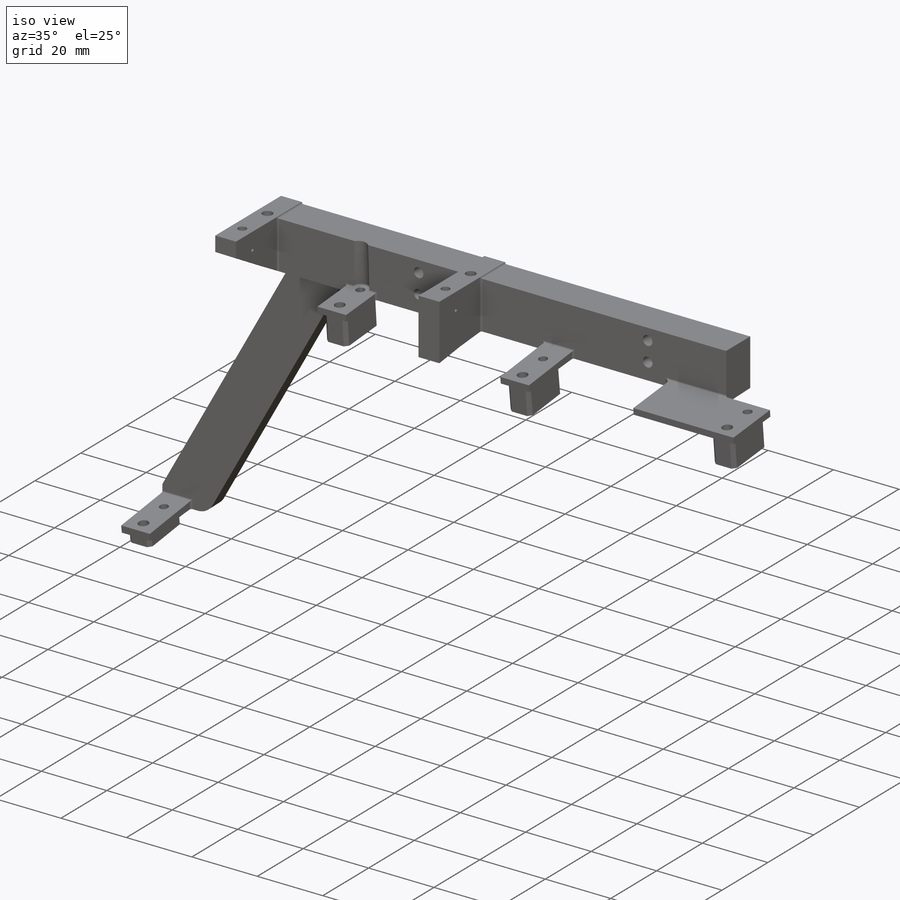
[diagram: iso view]
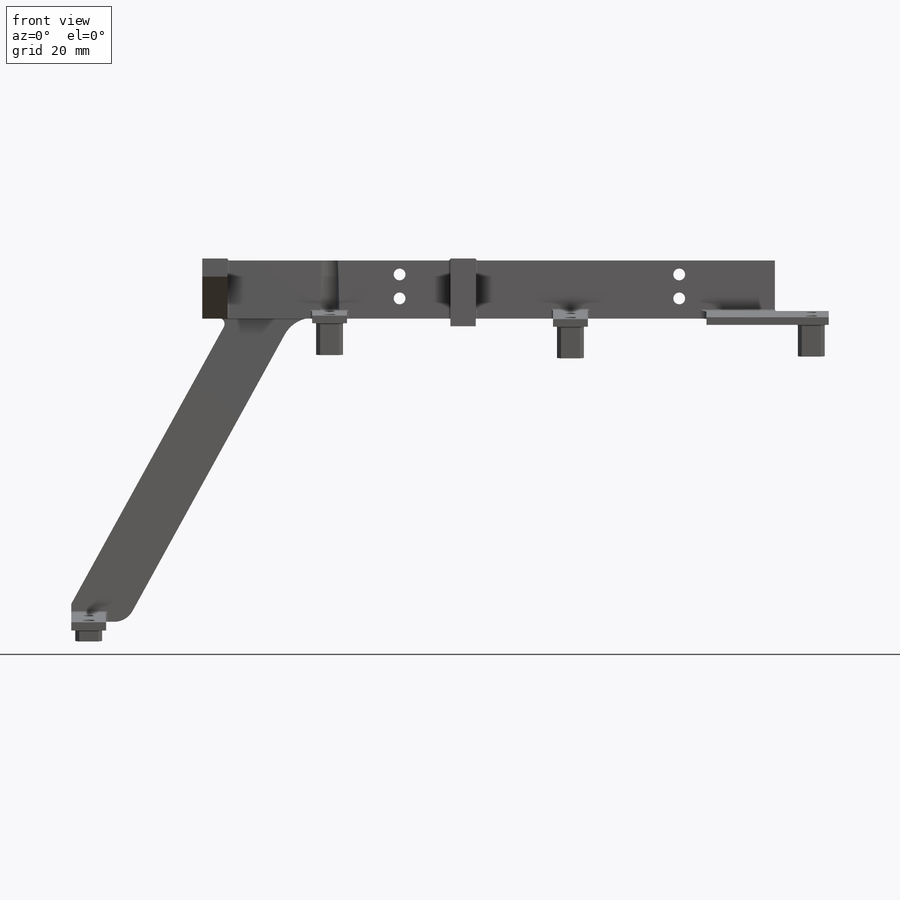
[diagram: front view]
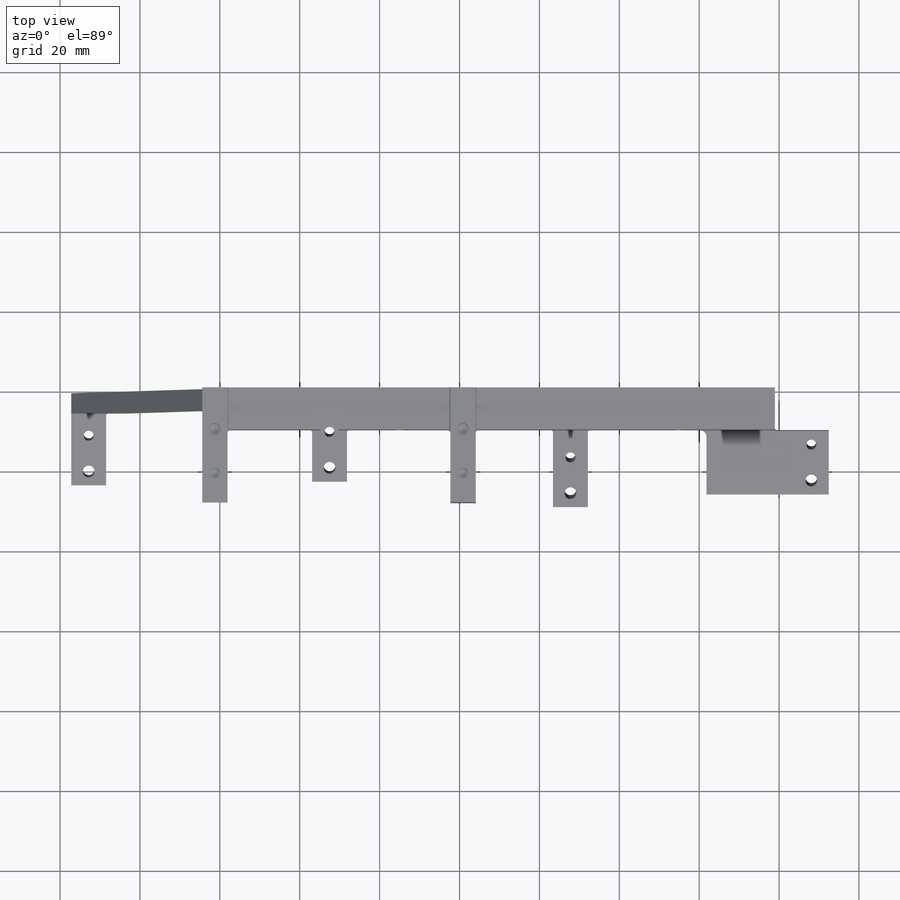
[diagram: top view]
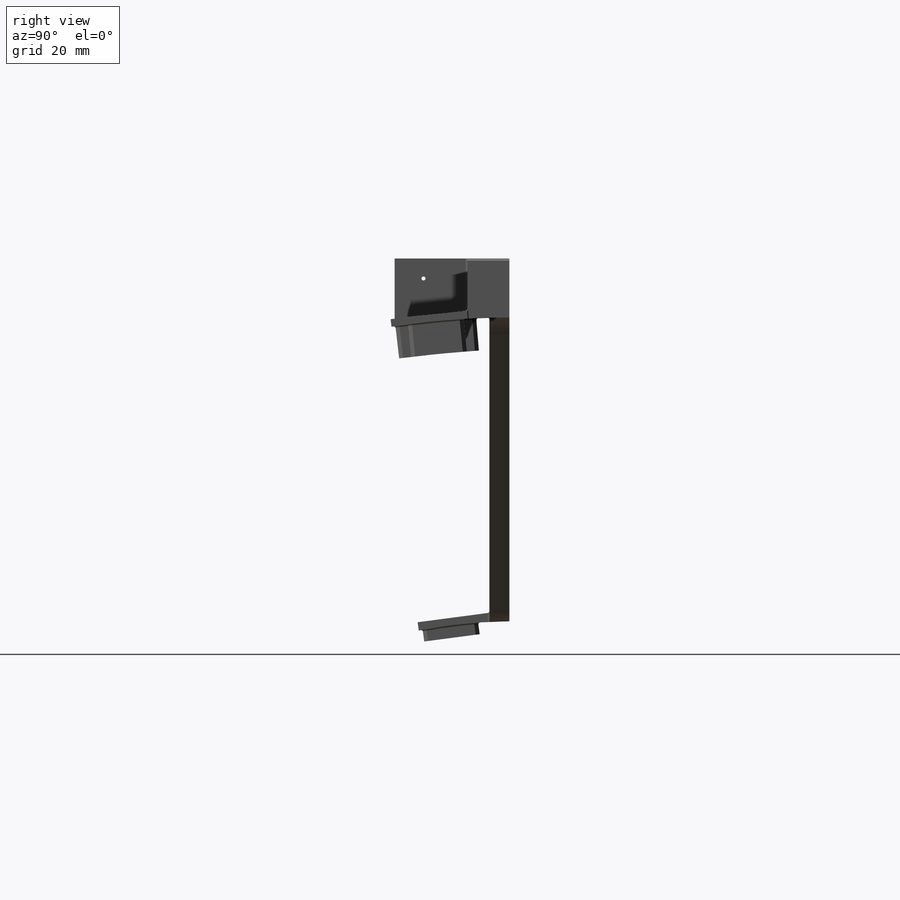
[diagram: right view]
SOLIDWORKS PART (.sldprt)
format: sldprt  version: not decoded by parser v0  size: 2,085,888 bytes
history: native  units: mm
features: sketch x33, extrude x14, cut_extrude x12, plane x8, hole x3, thread x2, fillet x2, material x1, cut_revolve x1, chamfer x1 + 2 further entries (+13 scaffold rows collapsed)
feature tree (92):
  scaffold x13  (default folders/planes/origin — collapsed)
  material  "Material <not specified>"
  plane  "Plane1"
  plane  "Plane2"
  plane  "Plane3"
  "Axis2"
  "Axis3"
  sketch  "Sketch73"  dims[c1.D2=183.0mm c1.D1=2.5mm c2.D2=193.2625mm c2.D3=~27.232494mm c2.D4=14.7375mm c2.D5=0.5mm c3.D4=208.0mm c3.D2=~29.232494mm]
  extrude  "Extrude2"  Depth=58.953335mm
  sketch  "Sketch92"  dims[c1.D1=2.9464mm c1.D3=2.9464mm c1.D7=2.9464mm c1.D11=~22.500641mm c2.D1=70.0mm c2.D2=~22.513704mm c2.D3=3.5mm c2.D4=~84.871158mm c3.D4=~61.150935deg c4.D4=~115.501491mm c5.D4=~61.150935deg c6.D4=~176.160335mm c6.D5=~1.446897mm c6.D6=~85.982124mm c6.D8=~11.301201mm c6.D9=~115.501491mm c6.D10=~115.501491mm c7.D10=~61.150935deg c7.D11=~9.338704mm c7.D12=0.5mm c7.D13=35.0mm c7.D2=115.0mm c7.D3=~10.778335mm c7.D5=0.5mm]
  extrude  "Extrude4"  Depth=5mm
  sketch  "Sketch94"  dims[c1.D9=3.0mm c1.D10=4.0mm c1.D2=6.7625mm c1.D7=4.5mm c1.D1=2.5mm c2.D2=~42.935967mm c3.D2=50.0deg c3.D3=~91.177867mm c4.D2=~100.269623mm c5.D2=~62.654091deg c5.D3=191.2625mm c5.D4=~104.165277mm c5.D5=125.0mm c5.D6=~60.834723mm c6.D4=188.0mm c6.D6=~46.36475mm c6.D1=~5.35288mm c6.D7=14.0mm c7.D1=6.5mm c7.D8=110.0mm c8.D1=~193.33025mm c8.D11=~14.60465mm c8.D6=~57.012213mm c9.D1=~14.686707mm c9.D5=117.5mm c9.D7=1.0mm c10.D5=~120.108474mm c10.D7=~74.340574mm c11.D7=~60.301597deg c11.D1=191.7625mm c11.D3=~57.012213mm c11.D4=~80.17119mm c12.D4=~61.150849deg c12.D5=~3.646559mm c12.D6=115.675mm c12.D7=188.0mm c12.D8=~191.646559mm c13.D4=~78.877644mm c14.D4=~61.150849deg c14.D8=15.7375mm c14.D9=~4.707961mm c14.D6=115.675mm c14.D2=1.5mm c14.D10=1.5mm]
  cut_revolve  "Cut-Revolve1"  Angle=360deg
  sketch  "Sketch74"  dims[c1.D1=6.35mm c1.D2=6.35mm c2.D1=6.35mm c2.D2=10.525mm]
  cut_extrude  "Cut-Extrude1"  [1 undecoded]
  sketch  "Sketch110"
  extrude  "Boss-Extrude1"  Depth=36.244171mm
  sketch  "Sketch111"
  extrude  "Boss-Extrude2"  Depth=6.35mm
  sketch  "Sketch112"  dims[c1.D1=~20.798079mm c2.D1=60.0deg]
  cut_extrude  "Cut-Extrude6"  [1 undecoded]
  plane  "Plane9"  Offset=64.106927mm
  sketch  "Sketch113"  dims[D1=0.0mm]
  extrude  "Boss-Extrude3"  Depth=6.35mm
  hole  "M3x0.5 Tapped Hole1"  Diameter=3mm Depth=7.5mm
  sketch  "Sketch89"  dims[D1=11.0mm]
  sketch  "Sketch88"  dims[hole-wizard template sketch: 50 standard entries collapsed; hole parameters above]
  thread  "Hole Thread1"  Diameter=6mm  [1 undecoded]
  thread  "Hole Thread2"  Diameter=6mm  [1 undecoded]
  hole  "Ø2.5 (2.5) Diameter Hole2"  Diameter=2.5mm Depth=6mm
  sketch  "Sketch91"  dims[D1=11.0mm]
  sketch  "Sketch90"  dims[hole-wizard template sketch: 50 standard entries collapsed; hole parameters above]
  sketch  "Sketch82"  dims[c1.D1=~0.950673mm c1.D2=1.0mm c2.D1=5.0mm]
  cut_extrude  "Cut-Extrude4"  [1 undecoded]
  hole  "#4 Clearance Hole1"  Diameter=2.9464mm Depth=10.525mm
  sketch  "Sketch84"  dims[c1.D1=35.0mm c1.D2=4.0mm c1.D3=6.0mm c2.D2=4.0mm]
  sketch  "Sketch83"  dims[hole-wizard template sketch: 60 standard entries collapsed; hole parameters kept: c18.Thru Hole Depth=10.525mm]
  sketch  "Sketch87"  dims[D1=0.5mm]
  cut_extrude  "Extrude3"  [1 undecoded]
  plane  "Plane5"  Offset=7.768073mm
  sketch  "Sketch95"  dims[c1.D1=185.0mm c1.D2=~100.458216mm c2.D2=97.5deg c2.D3=7.5mm c2.D4=10.0mm c2.D5=7.5mm c2.D6=~8.047476mm c3.D2=~8.047476mm c4.D2=90.0deg c5.D2=14.0mm c5.D3=~100.375788mm c6.D3=8.4375deg c6.D1=~100.375788mm c7.D1=6.5625deg c7.D3=185.0mm c7.D5=1.0mm]
  extrude  "Extrude5"  Depth=6.75mm
  plane  "Plane6"  Offset=52.531927mm
  sketch  "Sketch97"  dims[c1.D2=14.0mm c1.D3=~100.375788mm c2.D3=10.3125deg c2.D4=185.0mm c2.D1=185.0mm c3.D3=~100.375788mm c4.D3=4.6875deg c4.D4=10.0mm c4.D1=0.0mm]
  extrude  "Extrude6"  Depth=6.75mm
  sketch  "Sketch114"  dims[D1=0.0mm]
  cut_extrude  "Cut-Extrude7"  Depth=6.35mm
  plane  "Plane7"  Offset=68.068073mm
  sketch  "Sketch99"  dims[c1.D1=15.0mm c1.D2=~100.375788mm c2.D2=10.3125deg c3.D2=185.0mm c3.D3=~100.375788mm c4.D3=9.375deg c4.D1=14.0mm c5.D3=~100.375788mm c6.D3=5.625deg c6.D4=10.0mm c6.D1=0.0mm]
  extrude  "Extrude8"  Depth=3.375mm
  sketch  "Sketch100"
  cut_extrude  "Extrude9"  Depth=3.375mm
  plane  "Plane8"  Offset=112.831927mm
  sketch  "Sketch116"
  cut_extrude  "Cut-Extrude9"  [1 undecoded]
  sketch  "Sketch101"  dims[c1.D1=5.0mm c1.D2=~17.988915mm c2.D2=97.5deg c2.D3=114.0mm c3.D2=~100.375788mm c4.D2=7.5deg c4.D4=15.0mm c4.D5=1.0mm c5.D2=1.0mm c5.D4=~100.375788mm c6.D4=7.5deg c6.D5=14.0mm]
  extrude  "Extrude10"  Depth=6.75mm
  sketch  "Sketch106"  dims[D1=0.0mm]
  extrude  "Extrude14"  Depth=8.750144mm
  sketch  "Sketch103"  dims[D1=1.0mm D2=1.0mm D3=1.0mm]
  extrude  "Extrude11"  Depth=8.75mm
  sketch  "Sketch104"  dims[D1=0.0mm]
  extrude  "Extrude12"  Depth=8.75mm
  sketch  "Sketch105"  dims[c1.D2=1.0mm c1.D3=~10.148836mm c2.D3=0.9375deg c3.D3=1.0mm c3.D1=0.0mm]
  extrude  "Extrude13"  Depth=4.375mm
  sketch  "Sketch96"  dims[c1.D1=2.9464mm c1.D2=2.5mm c1.D3=2.9464mm c2.D1=2.9464mm c2.D2=2.5mm c2.D3=9.0mm c2.D4=4.5mm c2.D5=~6.328441mm c3.D3=9.0mm]
  cut_extrude  "Cut-Extrude5"  [1 undecoded]
  sketch  "Sketch107"  dims[c1.D1=2.9464mm c1.D2=2.5mm c1.D3=2.9464mm c2.D1=2.9464mm c2.D2=2.5mm c2.D3=9.0mm c2.D4=4.5mm c2.D5=~6.328441mm c3.D3=9.0mm]
  cut_extrude  "Extrude15"  [1 undecoded]
  sketch  "Sketch117"  dims[D1=5.0mm]
  cut_extrude  "Cut-Extrude10"  [1 undecoded]
  sketch  "Sketch108"  dims[c1.D1=2.9464mm c1.D2=2.5mm c1.D3=2.9464mm c2.D1=2.9464mm c2.D2=2.5mm c2.D3=9.0mm c2.D4=4.5mm c2.D5=~6.328441mm c3.D3=9.0mm]
  cut_extrude  "Extrude16"  [1 undecoded]
  sketch  "Sketch109"  dims[c1.D1=2.9464mm c1.D2=2.5mm c1.D3=2.9464mm c2.D1=2.9464mm c2.D2=2.5mm c2.D3=9.0mm c2.D4=4.5mm c2.D5=~6.328441mm c3.D3=9.0mm]
  cut_extrude  "Extrude17"  [1 undecoded]
  chamfer  "Chamfer1"  Distance=1mm Angle=45deg
  fillet  "Fillet2"  Radius=1.5875mm
  sketch  "Sketch118"  dims[D1=0.5mm]
  extrude  "Boss-Extrude4"  Depth=1mm
  fillet  "Fillet1"  Radius=0.5mm
decode coverage: 54 of 68 modeling features carry decoded parameters; 2 rows unclassified (native names shown)
note: ~ marks probable driven/reference dimensions
note: 12 parameter values undecoded
summary: no parameter record found for 10 features
note: suppression state not decoded; provenance and decode notes live in map.json
